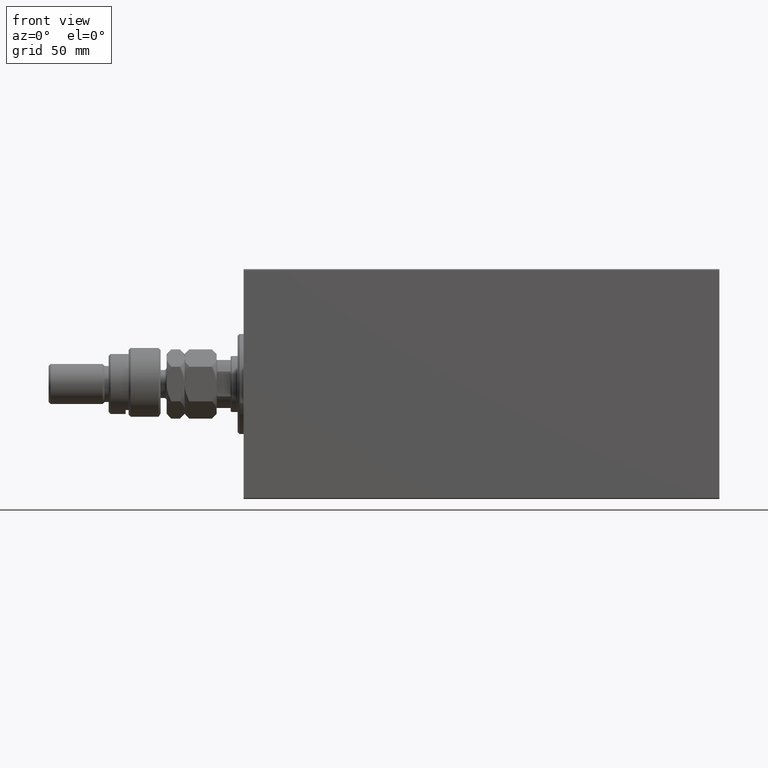
[diagram: clean part render]
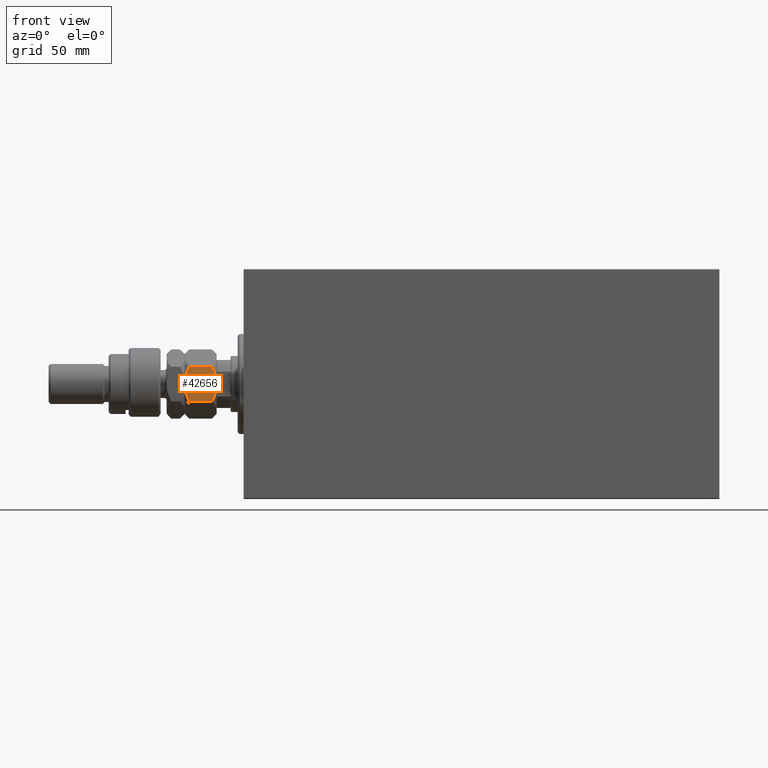
[diagram: same view with one face highlighted and labeled with its STEP entity id]
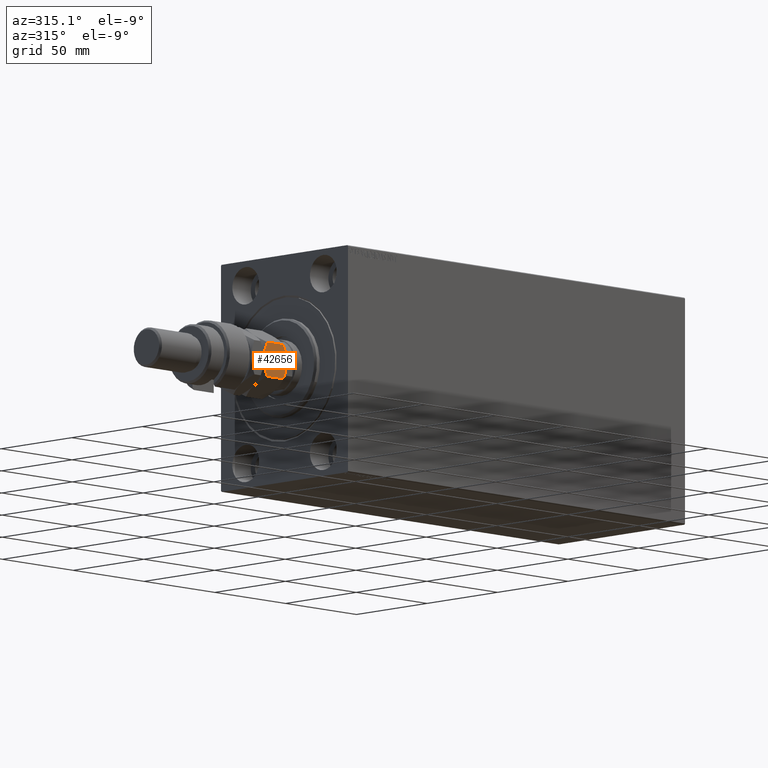
[diagram: same view with one face highlighted and labeled with its STEP entity id]
A machine part, front view. The second image highlights one B-rep face of the part: STEP entity #42656.
A second angle (auxiliary view) of the same face is appended — the face is thin or edge-on in the first view.
In plain terms, the highlighted planar face has unit normal (0, 1, -0).
Its self-contained STEP definition (entity closure, byte-faithful):
#1999 = CARTESIAN_POINT ( 'NONE',  ( 2.383929548160349299, -15.94414570932928576, 1.060479031370876957 ) ) ;
#2213 = B_SPLINE_CURVE_WITH_KNOTS ( 'NONE', 3,
 ( #2382, #2612, #42723, #34697, #17487, #21234, #24759, #35160 ),
 .UNSPECIFIED., .F., .F.,
 ( 4, 2, 2, 4 ),
 ( 2.544309033646407248E-07, 0.004488823491893905240, 0.006733108022389175384, 0.008977392552884447263 ),
 .UNSPECIFIED. ) ;
#2283 = CARTESIAN_POINT ( 'NONE',  ( -3.416099238086855886E-15, -17.32050807568877104, 13.67949192431124317 ) ) ;
#2382 = CARTESIAN_POINT ( 'NONE',  ( -3.416099238086855886E-15, -17.32050807568877104, 13.67949192431124317 ) ) ;
#2612 = CARTESIAN_POINT ( 'NONE',  ( 1.176108425306638505, -16.64148155974179488, 14.35851844025821755 ) ) ;
#4329 = VERTEX_POINT ( 'NONE', #32497 ) ;
#6702 = CARTESIAN_POINT ( 'NONE',  ( 13.82525345580783416, -9.338494271363316557, 14.35773215783021861 ) ) ;
#7405 = CARTESIAN_POINT ( 'NONE',  ( 10.08691881950258917, -11.49682277995505331, 15.76967007806078591 ) ) ;
#7539 = DIRECTION ( 'NONE',  ( -0.8660254037844388186, -0.4999999999999996669, 0.000000000000000000 ) ) ;
#8691 = ORIENTED_EDGE ( 'NONE', *, *, #34086, .F. ) ;
#9441 = ORIENTED_EDGE ( 'NONE', *, *, #21601, .F. ) ;
#9493 = DIRECTION ( 'NONE',  ( -0.000000000000000000, -0.000000000000000000, -1.000000000000000000 ) ) ;
#10474 = CARTESIAN_POINT ( 'NONE',  ( 12.61607045183964360, -10.03661640420387080, 14.93952096862912171 ) ) ;
#11393 = ORIENTED_EDGE ( 'NONE', *, *, #18738, .F. ) ;
#11618 = AXIS2_PLACEMENT_3D ( 'NONE', #18868, #22396, #7539 ) ;
#12762 = EDGE_CURVE ( 'NONE', #30715, #17204, #28461, .T. ) ;
#13540 = CARTESIAN_POINT ( 'NONE',  ( 6.195449321423083688, -13.74356374221447119, -1.770863548392988866E-15 ) ) ;
#13799 = CARTESIAN_POINT ( 'NONE',  ( 7.499999999999993783, -12.99038105676658006, 16.00000000000000000 ) ) ;
#14402 = FACE_OUTER_BOUND ( 'NONE', #30620, .T. ) ;
#15954 = CARTESIAN_POINT ( 'NONE',  ( 7.499999999999994671, -12.99038105676658184, 0.000000000000000000 ) ) ;
#16368 = LINE ( 'NONE', #16824, #18617 ) ;
#16824 = CARTESIAN_POINT ( 'NONE',  ( -3.035766082959412415E-15, -17.32050807568877104, 16.00000000000000000 ) ) ;
#17204 = VERTEX_POINT ( 'NONE', #19502 ) ;
#17487 = CARTESIAN_POINT ( 'NONE',  ( 4.881674457977372761, -14.50207201327941320, 15.71619733805371411 ) ) ;
#18617 = VECTOR ( 'NONE', #9493, 1000.000000000000000 ) ;
#18738 = EDGE_CURVE ( 'NONE', #29650, #19361, #2213, .T. ) ;
#18868 = CARTESIAN_POINT ( 'NONE',  ( -3.035766082959412415E-15, -17.32050807568877104, 16.00000000000000000 ) ) ;
#19057 = EDGE_CURVE ( 'NONE', #29650, #45582, #16368, .T. ) ;
#19361 = VERTEX_POINT ( 'NONE', #33998 ) ;
#19502 = CARTESIAN_POINT ( 'NONE',  ( 7.499999999999994671, -12.99038105676658184, 0.000000000000000000 ) ) ;
#19703 = ORIENTED_EDGE ( 'NONE', *, *, #12762, .F. ) ;
#20618 = B_SPLINE_CURVE_WITH_KNOTS ( 'NONE', 3,
 ( #13799, #39023, #7405, #10474, #6702, #21796 ),
 .UNSPECIFIED., .F., .F.,
 ( 4, 2, 4 ),
 ( 0.008977392552884447263, 0.01343452311421656532, 0.01789165367554868338 ),
 .UNSPECIFIED. ) ;
#21234 = CARTESIAN_POINT ( 'NONE',  ( 6.176419610670694560, -13.75455055083996214, 15.94046462602530312 ) ) ;
#21601 = EDGE_CURVE ( 'NONE', #19361, #4329, #20618, .T. ) ;
#21796 = CARTESIAN_POINT ( 'NONE',  ( 15.00000000000000000, -8.660254037844389075, 13.67949192431123961 ) ) ;
#21952 = B_SPLINE_CURVE_WITH_KNOTS ( 'NONE', 3,
 ( #42325, #13540, #23912, #1999, #30777, #38301 ),
 .UNSPECIFIED., .F., .F.,
 ( 4, 2, 4 ),
 ( 0.008977392552884455937, 0.01343452311421657053, 0.01789165367554868685 ),
 .UNSPECIFIED. ) ;
#22396 = DIRECTION ( 'NONE',  ( -0.4999999999999996669, 0.8660254037844388186, 0.000000000000000000 ) ) ;
#23010 = CARTESIAN_POINT ( 'NONE',  ( 8.156876182308243628, -12.61113341608666083, -1.722865014715246890E-15 ) ) ;
#23242 = CARTESIAN_POINT ( 'NONE',  ( 10.75222765045651308, -11.11270654730956586, 0.4475714085130263475 ) ) ;
#23912 = CARTESIAN_POINT ( 'NONE',  ( 4.913081180497406386, -14.48393933357810681, 0.2303299219392160313 ) ) ;
#24446 = ORIENTED_EDGE ( 'NONE', *, *, #19057, .T. ) ;
#24759 = CARTESIAN_POINT ( 'NONE',  ( 6.843123817691747490, -13.36962869744650284, 16.00000000000000711 ) ) ;
#24906 = CARTESIAN_POINT ( 'NONE',  ( 15.00000000000000000, -8.660254037844389075, 2.320508075688767047 ) ) ;
#25697 = PLANE ( 'NONE',  #11618 ) ;
#26556 = CARTESIAN_POINT ( 'NONE',  ( 12.62116548881249756, -10.03367478323606754, 1.064486067744006892 ) ) ;
#26892 = DIRECTION ( 'NONE',  ( -0.000000000000000000, -0.000000000000000000, -1.000000000000000000 ) ) ;
#28461 = B_SPLINE_CURVE_WITH_KNOTS ( 'NONE', 3,
 ( #30095, #45191, #26556, #23242, #37622, #34329, #23010, #15954 ),
 .UNSPECIFIED., .F., .F.,
 ( 4, 2, 2, 4 ),
 ( 2.544309033642853415E-07, 0.004488823491893907842, 0.006733108022389181456, 0.008977392552884455937 ),
 .UNSPECIFIED. ) ;
#29650 = VERTEX_POINT ( 'NONE', #2283 ) ;
#30095 = CARTESIAN_POINT ( 'NONE',  ( 15.00000000000000000, -8.660254037844389075, 2.320508075688767047 ) ) ;
#30620 = EDGE_LOOP ( 'NONE', ( #19703, #8691, #9441, #11393, #24446, #40687 ) ) ;
#30715 = VERTEX_POINT ( 'NONE', #24906 ) ;
#30777 = CARTESIAN_POINT ( 'NONE',  ( 1.174746544192159625, -16.64226784216984711, 1.642267842169777836 ) ) ;
#32497 = CARTESIAN_POINT ( 'NONE',  ( 15.00000000000000000, -8.660254037844389075, 13.67949192431123961 ) ) ;
#33998 = CARTESIAN_POINT ( 'NONE',  ( 7.499999999999993783, -12.99038105676658006, 16.00000000000000000 ) ) ;
#34086 = EDGE_CURVE ( 'NONE', #4329, #30715, #37964, .T. ) ;
#34329 = CARTESIAN_POINT ( 'NONE',  ( 8.823580389329300999, -12.22621156269320331, 0.05953537397470176629 ) ) ;
#34697 = CARTESIAN_POINT ( 'NONE',  ( 4.247772349543483372, -14.86805556622359425, 15.55242859148698109 ) ) ;
#35160 = CARTESIAN_POINT ( 'NONE',  ( 7.499999999999993783, -12.99038105676658006, 16.00000000000000000 ) ) ;
#37622 = CARTESIAN_POINT ( 'NONE',  ( 10.11832554202262102, -11.47869010025374870, 0.2838026619462938327 ) ) ;
#37964 = LINE ( 'NONE', #41284, #40010 ) ;
#38301 = CARTESIAN_POINT ( 'NONE',  ( -2.796947266322166691E-15, -17.32050807568877104, 2.320508075688761718 ) ) ;
#39023 = CARTESIAN_POINT ( 'NONE',  ( 8.804550678576907430, -12.23719837131869248, 16.00000000000000000 ) ) ;
#40010 = VECTOR ( 'NONE', #26892, 1000.000000000000000 ) ;
#40526 = EDGE_CURVE ( 'NONE', #17204, #45582, #21952, .T. ) ;
#40687 = ORIENTED_EDGE ( 'NONE', *, *, #40526, .F. ) ;
#41284 = CARTESIAN_POINT ( 'NONE',  ( 15.00000000000000000, -8.660254037844389075, 16.00000000000000000 ) ) ;
#42325 = CARTESIAN_POINT ( 'NONE',  ( 7.499999999999994671, -12.99038105676658184, 0.000000000000000000 ) ) ;
#42656 = ADVANCED_FACE ( 'NONE', ( #14402 ), #25697, .F. ) ;
#42723 = CARTESIAN_POINT ( 'NONE',  ( 2.378834511187501111, -15.94708733029709791, 14.93551393225600066 ) ) ;
#45191 = CARTESIAN_POINT ( 'NONE',  ( 13.82389157469335750, -9.339280553791367012, 1.641481559741792884 ) ) ;
#45582 = VERTEX_POINT ( 'NONE', #46052 ) ;
#46052 = CARTESIAN_POINT ( 'NONE',  ( -2.796947266322166691E-15, -17.32050807568877104, 2.320508075688761718 ) ) ;